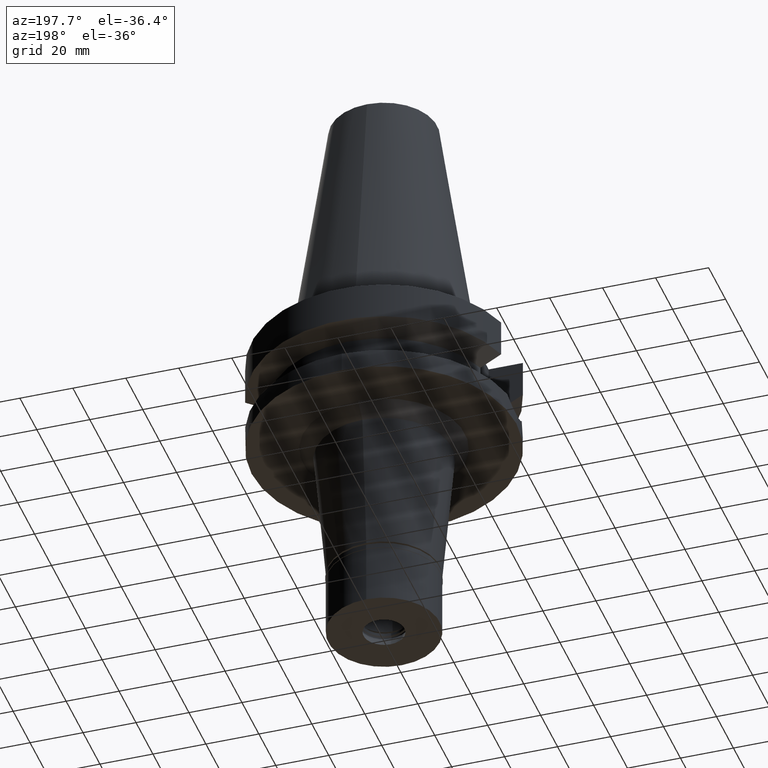
[diagram: clean part render]
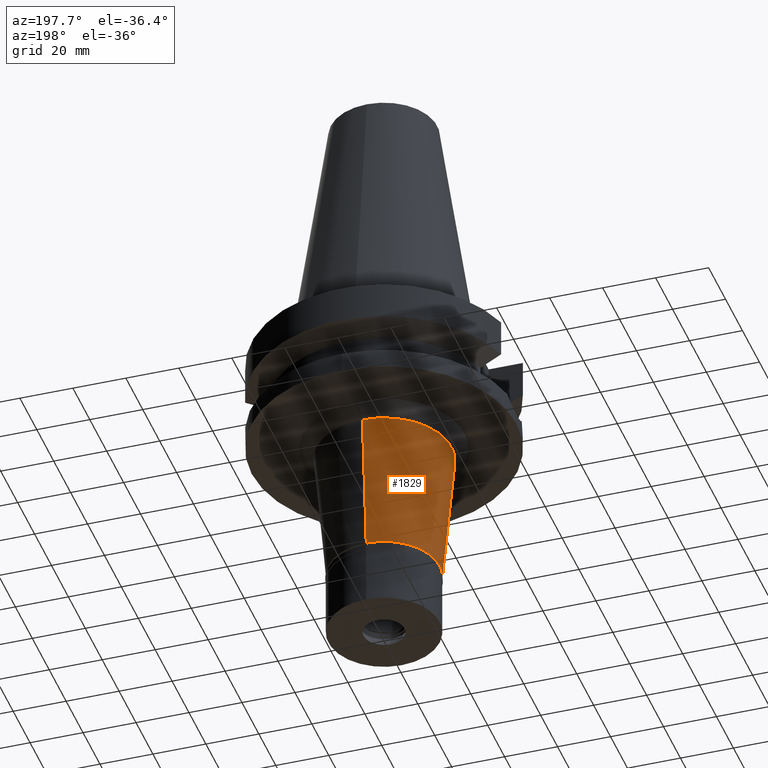
[diagram: same view with one face highlighted and labeled with its STEP entity id]
A machine part, auxiliary view. The second image highlights one B-rep face of the part: STEP entity #1829.
In plain terms, the highlighted conical surface has half-angle 5 deg.
Its self-contained STEP definition (entity closure, byte-faithful):
#147 = ORIENTED_EDGE ( 'NONE', *, *, #612, .F. ) ;
#176 = DIRECTION ( 'NONE',  ( 0.0000000000000000000, 0.0000000000000000000, -1.000000000000000000 ) ) ;
#211 = DIRECTION ( 'NONE',  ( 0.0000000000000000000, 1.000000000000000000, 0.0000000000000000000 ) ) ;
#278 = VERTEX_POINT ( 'NONE', #1751 ) ;
#326 = LINE ( 'NONE', #2808, #2061 ) ;
#373 = EDGE_CURVE ( 'NONE', #2391, #278, #326, .T. ) ;
#487 = AXIS2_PLACEMENT_3D ( 'NONE', #1705, #1231, #211 ) ;
#545 = AXIS2_PLACEMENT_3D ( 'NONE', #976, #2486, #2215 ) ;
#583 = CARTESIAN_POINT ( 'NONE',  ( 0.0000000000000000000, -25.54066163699999947, -43.00000000000000000 ) ) ;
#612 = EDGE_CURVE ( 'NONE', #1239, #1584, #2260, .T. ) ;
#741 = FACE_OUTER_BOUND ( 'NONE', #2348, .T. ) ;
#814 = ORIENTED_EDGE ( 'NONE', *, *, #951, .T. ) ;
#951 = EDGE_CURVE ( 'NONE', #1239, #2391, #2847, .T. ) ;
#976 = CARTESIAN_POINT ( 'NONE',  ( 0.0000000000000000000, 0.0000000000000000000, -68.95000000000000284 ) ) ;
#1129 = AXIS2_PLACEMENT_3D ( 'NONE', #2825, #176, #1398 ) ;
#1231 = DIRECTION ( 'NONE',  ( 0.0000000000000000000, 0.0000000000000000000, 1.000000000000000000 ) ) ;
#1239 = VERTEX_POINT ( 'NONE', #1254 ) ;
#1254 = CARTESIAN_POINT ( 'NONE',  ( 0.0000000000000000000, -25.54066163699999947, -43.00000000000000000 ) ) ;
#1278 = CONICAL_SURFACE ( 'NONE', #545, 23.27033081849999974, 0.08726646259969973729 ) ;
#1398 = DIRECTION ( 'NONE',  ( 0.0000000000000000000, -1.000000000000000000, 0.0000000000000000000 ) ) ;
#1483 = ORIENTED_EDGE ( 'NONE', *, *, #2025, .T. ) ;
#1584 = VERTEX_POINT ( 'NONE', #2153 ) ;
#1705 = CARTESIAN_POINT ( 'NONE',  ( 0.0000000000000000000, 0.0000000000000000000, -94.89999999999999147 ) ) ;
#1751 = CARTESIAN_POINT ( 'NONE',  ( 0.0000000000000000000, 21.00000000000000000, -94.89999999999999147 ) ) ;
#1784 = VECTOR ( 'NONE', #2516, 1000.000000000000000 ) ;
#1824 = CARTESIAN_POINT ( 'NONE',  ( 0.0000000000000000000, 25.54066163699999947, -43.00000000000000000 ) ) ;
#1829 = ADVANCED_FACE ( 'NONE', ( #741 ), #1278, .T. ) ;
#2025 = EDGE_CURVE ( 'NONE', #278, #1584, #2346, .T. ) ;
#2061 = VECTOR ( 'NONE', #2311, 1000.000000000000000 ) ;
#2141 = ORIENTED_EDGE ( 'NONE', *, *, #373, .T. ) ;
#2153 = CARTESIAN_POINT ( 'NONE',  ( 0.0000000000000000000, -21.00000000000000000, -94.89999999999999147 ) ) ;
#2215 = DIRECTION ( 'NONE',  ( 0.0000000000000000000, 1.000000000000000000, 0.0000000000000000000 ) ) ;
#2260 = LINE ( 'NONE', #583, #1784 ) ;
#2311 = DIRECTION ( 'NONE',  ( 0.0000000000000000000, -0.08715574274769373464, -0.9961946980917424366 ) ) ;
#2346 = CIRCLE ( 'NONE', #487, 21.00000000000000000 ) ;
#2348 = EDGE_LOOP ( 'NONE', ( #1483, #147, #814, #2141 ) ) ;
#2391 = VERTEX_POINT ( 'NONE', #1824 ) ;
#2486 = DIRECTION ( 'NONE',  ( 0.0000000000000000000, 0.0000000000000000000, 1.000000000000000000 ) ) ;
#2516 = DIRECTION ( 'NONE',  ( 0.0000000000000000000, 0.08715574274769373464, -0.9961946980917424366 ) ) ;
#2808 = CARTESIAN_POINT ( 'NONE',  ( 0.0000000000000000000, 25.54066163699999947, -43.00000000000000000 ) ) ;
#2825 = CARTESIAN_POINT ( 'NONE',  ( 0.0000000000000000000, 0.0000000000000000000, -43.00000000000000000 ) ) ;
#2847 = CIRCLE ( 'NONE', #1129, 25.54066163699999947 ) ;